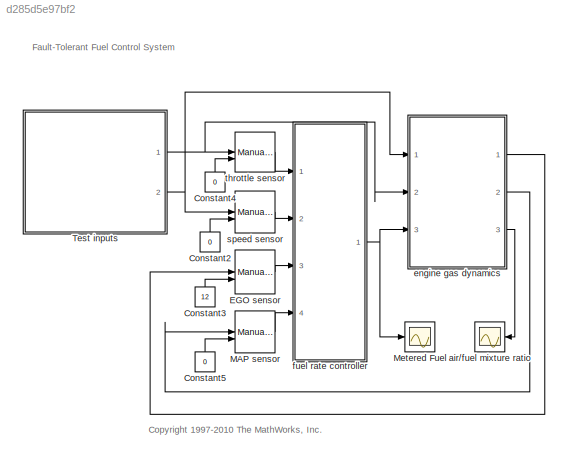
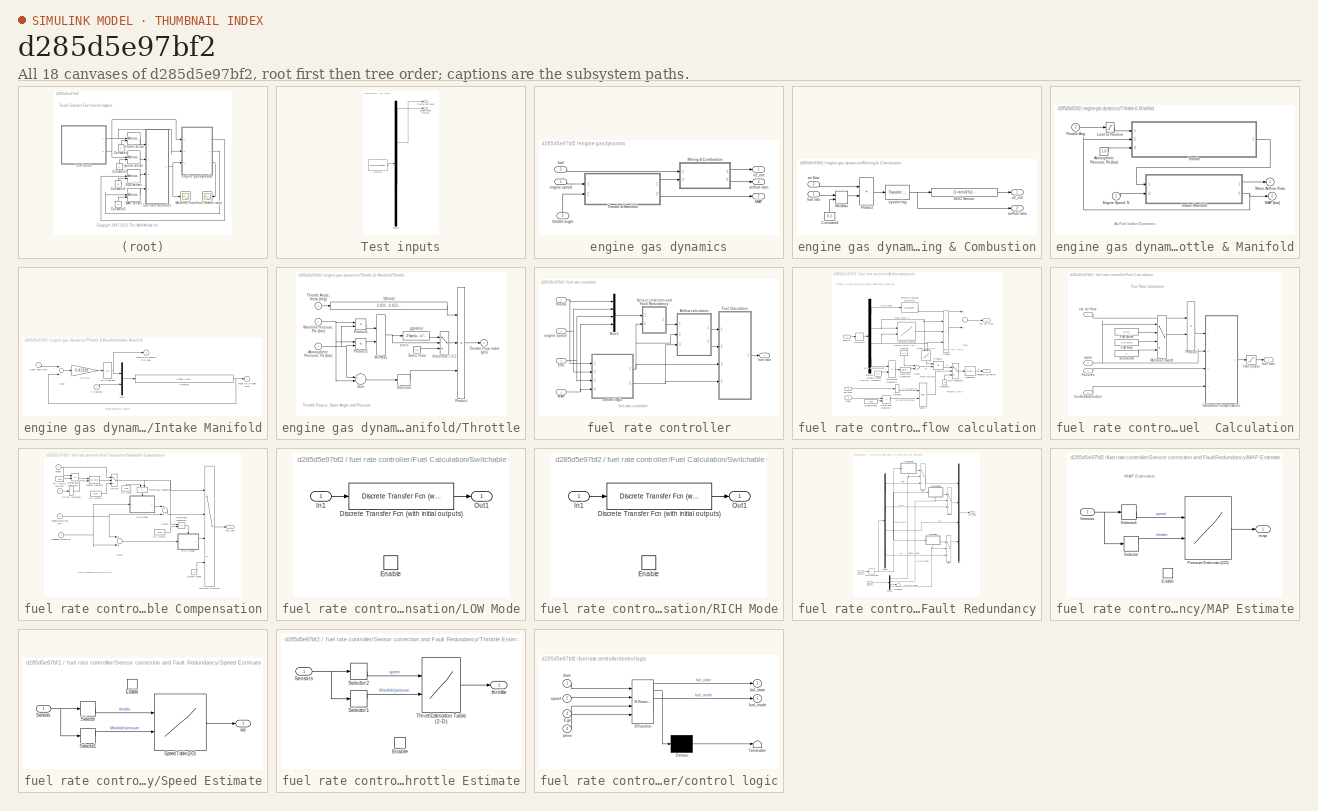
[diagram: thumbnail index - all 18 canvases of the model, root first then tree order]
MODEL slx_d285d5e97bf2
KIND model
CONFIG AbsTol = 1e-6
CONFIG EnableMultiTasking = off
CONFIG FixedStep = 0.001
CONFIG MaxStep = auto
CONFIG MinStep = auto
CONFIG PreLoadFcn = load FuelSysData;
CONFIG RelTol = 1e-5
CONFIG SampleTimeConstraint = Unconstrained
CONFIG Solver = ode45
CONFIG SolverName = ode45
CONFIG StartTime = 0.0
CONFIG StopTime = 20
WORKSPACE source: MAT-file member
WORKSPACE A1 = [1 -0.740818220682]
BLOCK [Constant] Constant2
  Value = 0
BLOCK [Constant] Constant3
  Value = 12
BLOCK [Constant] Constant4
  Value = 0
BLOCK [Constant] Constant5
  Value = 0
BLOCK [ManualSwitch] EGO sensor
BLOCK [ManualSwitch] MAP sensor
BLOCK [Scope] Metered Fuel
  NumInputPorts = 1
  Ports = [1]
  ScopeSpecificationString = C++SS(StrPVP('Location','[25, 518, 300, 694]'),StrPVP('Open','off'),StrPVP('TickLabels','on'),MxPVP('AxesTitles',53,'struct(''axes1'',''%<SignalLabel>'')'),MxPVP('ScopeGraphics',56,'struct(''FigureColor'',''[0.5 0.5 0.5]'',''AxesColor'',''[0 0 0]'',''AxesTickColor'',''[1 1 1]'',''LineColors'',''[1 1 0;1 0 1;0 1 1;1 0 0;0 1 0;0 0 1]'',''LineStyles'',''-|-|-|-|-|-'',''LineWidths'',''[0.5 0.5 0.5 0.5...<+259ch>
BLOCK [SubSystem] Test inputs
  ClipboardFcn = sigbuilder_block('clipboard');
  CloseFcn = sigbuilder_block('close');
  ContinueFcn = sigbuilder_block('continue')
  CopyFcn = sigbuilder_block('copy');
  DeleteFcn = sigbuilder_block('delete');
  LoadFcn = sigbuilder_block('load');
  MaskHideContents = on
  ModelCloseFcn = sigbuilder_block('modelClose');
  NameChangeFcn = sigbuilder_block('namechange');
  OpenFcn = sigbuilder_block('open',[764.25 127.5 550.5 399.75 ]);
  PauseFcn = sigbuilder_block('pause')
  Ports = [0, 2]
  PreSaveFcn = sigbuilder_block('preSave');
  RequestExecContextInheritance = off
  StartFcn = sigbuilder_block('start');
  StopFcn = sigbuilder_block('stop');
  Tag = STV Subsys
  Variant = off
BLOCK [Demux] Test inputs/Demux
  Outputs = 2
  Ports = [1, 2]
  Tag = STV Demux
BLOCK [Outport] Test inputs/Engine speed (rad//sec)
  IconDisplay = Port number
  Port = 2
  Tag = STV Outport
BLOCK [FromWorkspace] Test inputs/FromWs
  SampleTime = 0
  Tag = STV FromWs
  VariableName = tuvar
  ZeroCross = on
BLOCK [Outport] Test inputs/Throttle command
  IconDisplay = Port number
  Tag = STV Outport
BLOCK [Scope] air//fuel mixture ratio
  NumInputPorts = 1
  Ports = [1]
  ScopeSpecificationString = C++SS(StrPVP('Location','[308, 519, 587, 696]'),StrPVP('Open','off'),StrPVP('TickLabels','on'),MxPVP('AxesTitles',53,'struct(''axes1'',''%<SignalLabel>'')'),MxPVP('ScopeGraphics',56,'struct(''FigureColor'',''[0.5 0.5 0.5]'',''AxesColor'',''[0 0 0]'',''AxesTickColor'',''[1 1 1]'',''LineColors'',''[1 1 0;1 0 1;0 1 1;1 0 0;0 1 0;0 0 1]'',''LineStyles'',''-|-|-|-|-|-'',''LineWidths'',''[0.5 0.5 0.5 0....<+256ch>
BLOCK [SubSystem] engine gas dynamics
  Ports = [3, 3]
  RequestExecContextInheritance = off
  Variant = off
BLOCK [Outport] engine gas dynamics/MAP
  IconDisplay = Port number
  InitialOutput = 0
  Port = 2
BLOCK [SubSystem] engine gas dynamics/Mixing & Combustion
  Ports = [2, 2]
  RequestExecContextInheritance = off
  Variant = off
BLOCK [Constant] engine gas dynamics/Mixing & Combustion/Constant4
  Value = 0.1
BLOCK [Fcn] engine gas dynamics/Mixing & Combustion/EGO Sensor
  Expr = (1-tanh(4*(u[1]-14.6)))/2
BLOCK [MinMax] engine gas dynamics/Mixing & Combustion/MinMax
  Function = max
  Inputs = 2
  Ports = [2, 1]
BLOCK [Product] engine gas dynamics/Mixing & Combustion/Product
  Inputs = */
  Ports = [2, 1]
BLOCK [Inport] engine gas dynamics/Mixing & Combustion/air flow
  IconDisplay = Port number
  Port = 2
BLOCK [Outport] engine gas dynamics/Mixing & Combustion/air//fuel ratio
  IconDisplay = Port number
  InitialOutput = 0
  Port = 2
BLOCK [Inport] engine gas dynamics/Mixing & Combustion/fuel rate
  IconDisplay = Port number
BLOCK [Outport] engine gas dynamics/Mixing & Combustion/o2_out
  IconDisplay = Port number
  InitialOutput = 0
BLOCK [Reference] engine gas dynamics/Mixing & Combustion/system lag  REF=simulink_extras/Additional
Linear/Transfer Fcn
(with initial outputs)
  Ports = [1, 1]
  SourceBlock = simulink_extras/Additional\nLinear/Transfer Fcn\n(with initial outputs)
  SourceProductBaseCode = SL
  SourceProductName = Simulink
  SourceType = Transfer Function with Initial Outputs
BLOCK [SubSystem] engine gas dynamics/Throttle & Manifold
  Ports = [2, 2]
  RequestExecContextInheritance = off
  Variant = off
BLOCK [Constant] engine gas dynamics/Throttle & Manifold/Atmospheric Pressure, Pa (bar)
  Value = 1.0
BLOCK [Inport] engine gas dynamics/Throttle & Manifold/Engine Speed, N
  IconDisplay = Port number
BLOCK [SubSystem] engine gas dynamics/Throttle & Manifold/Intake Manifold
  Ports = [2, 2]
  RequestExecContextInheritance = off
  Variant = off
BLOCK [Outport] engine gas dynamics/Throttle & Manifold/Intake Manifold/Manifold Pressure, Pm (bar)
  IconDisplay = Port number
  InitialOutput = 0
  Port = 2
BLOCK [Mux] engine gas dynamics/Throttle & Manifold/Intake Manifold/Mux
  Inputs = 2
  Ports = [2, 1]
BLOCK [Inport] engine gas dynamics/Throttle & Manifold/Intake Manifold/N (rad//sec)
  IconDisplay = Port number
  Port = 2
BLOCK [Fcn] engine gas dynamics/Throttle & Manifold/Intake Manifold/Pumping
  Expr = -0.366 + 0.08979*u[1]*u[2] - 0.0337*u[2]*u[1]*u[1] + 0.0001*u[1]*u[2]*u[2]
BLOCK [Gain] engine gas dynamics/Throttle & Manifold/Intake Manifold/RT//Vm
  Gain = 0.41328
BLOCK [Sum] engine gas dynamics/Throttle & Manifold/Intake Manifold/Sum
  Inputs = +-
  Ports = [2, 1]
BLOCK [Inport] engine gas dynamics/Throttle & Manifold/Intake Manifold/mdot Input (g//s)
  IconDisplay = Port number
BLOCK [Outport] engine gas dynamics/Throttle & Manifold/Intake Manifold/mdot to Cylinder (g//s)
  IconDisplay = Port number
  InitialOutput = 0
BLOCK [Integrator] engine gas dynamics/Throttle & Manifold/Intake Manifold/p0 = 0.589 bar
  InitialCondition = .589
  Ports = [1, 1]
BLOCK [Saturate] engine gas dynamics/Throttle & Manifold/Limit to Positive
  InputPortMap = u0
  LowerLimit = 0
  Ports = [1, 1]
  UpperLimit = inf
BLOCK [Outport] engine gas dynamics/Throttle & Manifold/MAP (bar)
  IconDisplay = Port number
  InitialOutput = 0
  Port = 2
BLOCK [Outport] engine gas dynamics/Throttle & Manifold/Mass Airflow Rate
  IconDisplay = Port number
  InitialOutput = 0
BLOCK [SubSystem] engine gas dynamics/Throttle & Manifold/Throttle
  Ports = [3, 1]
  RequestExecContextInheritance = off
  Variant = off
BLOCK [Inport] engine gas dynamics/Throttle & Manifold/Throttle Ang.
  IconDisplay = Port number
  Port = 2
BLOCK [Inport] engine gas dynamics/Throttle & Manifold/Throttle/Atmospheric Pressure, Pa (bar) 
  IconDisplay = Port number
  Port = 3
BLOCK [Inport] engine gas dynamics/Throttle & Manifold/Throttle/Manifold Pressure, Pm (bar)
  IconDisplay = Port number
  Port = 2
BLOCK [MinMax] engine gas dynamics/Throttle & Manifold/Throttle/MinMax
  Inputs = 2
  Ports = [2, 1]
BLOCK [Product] engine gas dynamics/Throttle & Manifold/Throttle/Product
  Inputs = 3
  Ports = [3, 1]
BLOCK [Product] engine gas dynamics/Throttle & Manifold/Throttle/Product1
  Inputs = */
  Ports = [2, 1]
BLOCK [Product] engine gas dynamics/Throttle & Manifold/Throttle/Product2
  Inputs = /*
  Ports = [2, 1]
BLOCK [Constant] engine gas dynamics/Throttle & Manifold/Throttle/Sonic Flow 
  Value = 1.0
BLOCK [Sum] engine gas dynamics/Throttle & Manifold/Throttle/Sum
  Inputs = +-
  Ports = [2, 1]
BLOCK [Inport] engine gas dynamics/Throttle & Manifold/Throttle/Throttle Angle, theta (deg)
  IconDisplay = Port number
BLOCK [Outport] engine gas dynamics/Throttle & Manifold/Throttle/Throttle Flow, mdot (g//s)
  IconDisplay = Port number
  InitialOutput = 0
BLOCK [Signum] engine gas dynamics/Throttle & Manifold/Throttle/direction
BLOCK [Fcn] engine gas dynamics/Throttle & Manifold/Throttle/f(theta)
  Expr = 2.821 - 0.05231*u[1] + 0.10299*u[1]*u[1] - 0.00063*u[1]*u[1]*u[1]
BLOCK [Fcn] engine gas dynamics/Throttle & Manifold/Throttle/g(pratio)
  Expr = 2*sqrt(u - u*u)
BLOCK [Switch] engine gas dynamics/Throttle & Manifold/Throttle/threshold = 0.5
  Threshold = 0.5
BLOCK [Outport] engine gas dynamics/air//fuel ratio
  IconDisplay = Port number
  InitialOutput = 0
  Port = 3
BLOCK [Inport] engine gas dynamics/engine speed
  IconDisplay = Port number
BLOCK [Inport] engine gas dynamics/fuel
  IconDisplay = Port number
  Port = 3
BLOCK [Outport] engine gas dynamics/o2_out
  IconDisplay = Port number
  InitialOutput = 0
BLOCK [Inport] engine gas dynamics/throttle angle
  IconDisplay = Port number
  Port = 2
BLOCK [SubSystem] fuel rate controller
  Ports = [4, 1]
  RequestExecContextInheritance = off
  Variant = off
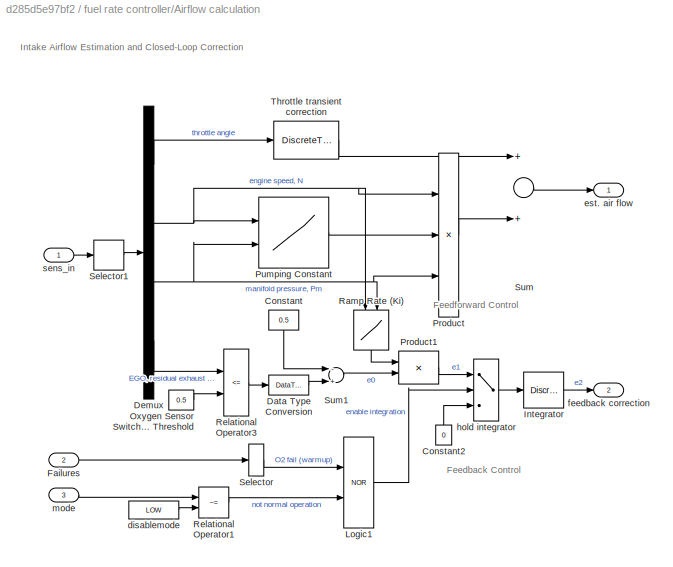
BLOCK [SubSystem] fuel rate controller/Airflow calculation
  Ports = [3, 2]
  RequestExecContextInheritance = off
  Variant = off
BLOCK [Constant] fuel rate controller/Airflow calculation/Constant
  Value = 0.5
BLOCK [Constant] fuel rate controller/Airflow calculation/Constant2
  Value = 0
BLOCK [DataTypeConversion] fuel rate controller/Airflow calculation/Data Type Conversion
  OutDataTypeStr = double
BLOCK [Demux] fuel rate controller/Airflow calculation/Demux
  Ports = [1, 4]
BLOCK [Inport] fuel rate controller/Airflow calculation/Failures
  IconDisplay = Port number
  Port = 2
BLOCK [DiscreteIntegrator] fuel rate controller/Airflow calculation/Integrator
  ICPrevOutput = DiscIntNeverNeededParam
  ICPrevScaledInput = DiscIntNeverNeededParam
  InitialCondition = -0.01
  Ports = [1, 1]
  SampleTime = .01
BLOCK [Logic] fuel rate controller/Airflow calculation/Logic1
  Operator = NOR
  Ports = [2, 1]
BLOCK [Constant] fuel rate controller/Airflow calculation/Oxygen Sensor Switching Threshold
  Value = 0.5
BLOCK [Product] fuel rate controller/Airflow calculation/Product
  Inputs = 3
  Ports = [3, 1]
BLOCK [Product] fuel rate controller/Airflow calculation/Product1
  Ports = [2, 1]
BLOCK [Lookup2D] fuel rate controller/Airflow calculation/Pumping Constant
  ColumnIndex = press
  RowIndex = SpeedVect
  Table = pumpCon
BLOCK [Lookup2D] fuel rate controller/Airflow calculation/Ramp Rate (Ki)
  ColumnIndex = [0:0.2:1]
  RowIndex = [100:100:500]
  Table = [1:5]'*[1:6]*Ki
BLOCK [RelationalOperator] fuel rate controller/Airflow calculation/Relational Operator1
  Operator = ~=
  Ports = [2, 1]
BLOCK [RelationalOperator] fuel rate controller/Airflow calculation/Relational Operator3
  Operator = <=
  Ports = [2, 1]
BLOCK [Selector] fuel rate controller/Airflow calculation/Selector
  IndexOptions = Index vector (dialog)
  Indices = 3
  InputPortWidth = 4
  OutputSizes = 1
  Ports = [1, 1]
BLOCK [Selector] fuel rate controller/Airflow calculation/Selector1
  IndexOptions = Index vector (dialog)
  Indices = [1 2 4 3]
  InputPortWidth = 4
  OutputSizes = 1
  Ports = [1, 1]
BLOCK [Sum] fuel rate controller/Airflow calculation/Sum
  Inputs = 2
  Ports = [2, 1]
BLOCK [Sum] fuel rate controller/Airflow calculation/Sum1
  Inputs = -+
  Ports = [2, 1]
BLOCK [DiscreteTransferFcn] fuel rate controller/Airflow calculation/Throttle transient correction
  Denominator = [1 -0.8]
  InputPortMap = u0
  Numerator = [0.01 -0.01]
  Ports = [1, 1]
  SampleTime = .01
BLOCK [Constant] fuel rate controller/Airflow calculation/disablemode
  Value = LOW
BLOCK [Outport] fuel rate controller/Airflow calculation/est. air flow
  IconDisplay = Port number
  InitialOutput = 0
BLOCK [Outport] fuel rate controller/Airflow calculation/feedback correction
  IconDisplay = Port number
  InitialOutput = 0
  Port = 2
BLOCK [Switch] fuel rate controller/Airflow calculation/hold integrator
  Threshold = 1
BLOCK [Inport] fuel rate controller/Airflow calculation/mode
  IconDisplay = Port number
  Port = 3
BLOCK [Inport] fuel rate controller/Airflow calculation/sens_in
  IconDisplay = Port number
BLOCK [Inport] fuel rate controller/EGO
  IconDisplay = Port number
  Port = 3
BLOCK [SubSystem] fuel rate controller/Fuel  Calculation
  Ports = [4, 1]
  RequestExecContextInheritance = off
  Variant = off
BLOCK [Constant] fuel rate controller/Fuel  Calculation/F//A Norm
  Value = 1/14.6
BLOCK [Constant] fuel rate controller/Fuel  Calculation/F//A Rich
  Value = 1/(14.6*0.8)
BLOCK [Inport] fuel rate controller/Fuel  Calculation/Failures
  IconDisplay = Port number
  Port = 3
BLOCK [MultiPortSwitch] fuel rate controller/Fuel  Calculation/Multiport Switch
  Ports = [4, 1]
BLOCK [Product] fuel rate controller/Fuel  Calculation/Product
  Ports = [2, 1]
BLOCK [Constant] fuel rate controller/Fuel  Calculation/Shutdown
  Value = 0
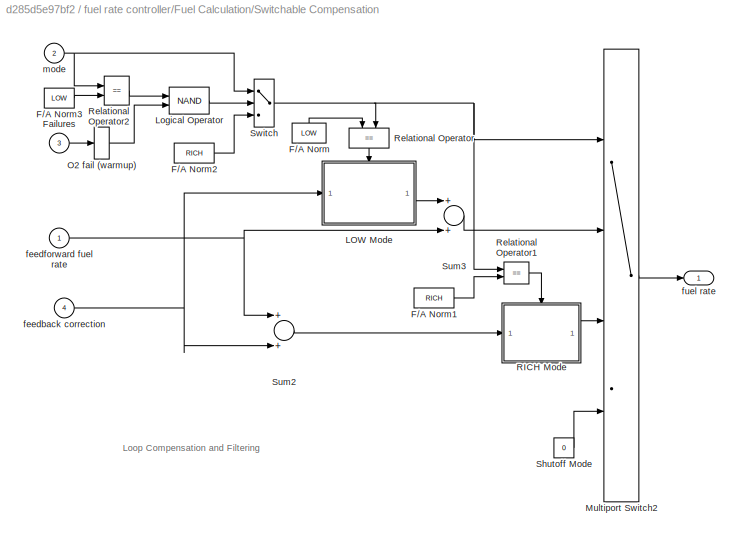
BLOCK [SubSystem] fuel rate controller/Fuel  Calculation/Switchable Compensation
  Ports = [4, 1]
  RequestExecContextInheritance = off
  Variant = off
BLOCK [Constant] fuel rate controller/Fuel  Calculation/Switchable Compensation/F//A Norm
  Value = LOW
BLOCK [Constant] fuel rate controller/Fuel  Calculation/Switchable Compensation/F//A Norm1
  Value = RICH
BLOCK [Constant] fuel rate controller/Fuel  Calculation/Switchable Compensation/F//A Norm2
  Value = RICH
BLOCK [Constant] fuel rate controller/Fuel  Calculation/Switchable Compensation/F//A Norm3
  Value = LOW
BLOCK [Inport] fuel rate controller/Fuel  Calculation/Switchable Compensation/Failures
  IconDisplay = Port number
  Port = 3
BLOCK [SubSystem] fuel rate controller/Fuel  Calculation/Switchable Compensation/LOW Mode
  Ports = [1, 1, 1]
  RequestExecContextInheritance = off
  Variant = off
BLOCK [Reference] fuel rate controller/Fuel  Calculation/Switchable Compensation/LOW Mode/Discrete Transfer Fcn (with initial outputs)  REF=simulink_extras/Additional
Discrete/Discrete
Transfer Fcn
(with initial outputs)
  Ports = [1, 1]
  SourceBlock = simulink_extras/Additional\nDiscrete/Discrete\nTransfer Fcn\n(with initial outputs)
  SourceProductBaseCode = SL
  SourceProductName = Simulink
  SourceType = Discrete Transfer Function with Initial Outputs
BLOCK [EnablePort] fuel rate controller/Fuel  Calculation/Switchable Compensation/LOW Mode/Enable
  Ports = []
  PropagateVarSize = During execution
  StatesWhenEnabling = reset
BLOCK [Inport] fuel rate controller/Fuel  Calculation/Switchable Compensation/LOW Mode/In1
  IconDisplay = Port number
BLOCK [Outport] fuel rate controller/Fuel  Calculation/Switchable Compensation/LOW Mode/Out1
  IconDisplay = Port number
  InitialOutput = y0
BLOCK [Logic] fuel rate controller/Fuel  Calculation/Switchable Compensation/Logical Operator
  Operator = NAND
  Ports = [2, 1]
BLOCK [MultiPortSwitch] fuel rate controller/Fuel  Calculation/Switchable Compensation/Multiport Switch2
  Ports = [4, 1]
BLOCK [Selector] fuel rate controller/Fuel  Calculation/Switchable Compensation/O2 fail (warmup)
  IndexOptions = Index vector (dialog)
  Indices = 3
  InputPortWidth = 4
  OutputSizes = 1
  Ports = [1, 1]
BLOCK [SubSystem] fuel rate controller/Fuel  Calculation/Switchable Compensation/RICH Mode
  Ports = [1, 1, 1]
  RequestExecContextInheritance = off
  Variant = off
BLOCK [Reference] fuel rate controller/Fuel  Calculation/Switchable Compensation/RICH Mode/Discrete Transfer Fcn (with initial outputs)  REF=simulink_extras/Additional
Discrete/Discrete
Transfer Fcn
(with initial outputs)
  Ports = [1, 1]
  SourceBlock = simulink_extras/Additional\nDiscrete/Discrete\nTransfer Fcn\n(with initial outputs)
  SourceProductBaseCode = SL
  SourceProductName = Simulink
  SourceType = Discrete Transfer Function with Initial Outputs
BLOCK [EnablePort] fuel rate controller/Fuel  Calculation/Switchable Compensation/RICH Mode/Enable
  Ports = []
  PropagateVarSize = During execution
  StatesWhenEnabling = reset
BLOCK [Inport] fuel rate controller/Fuel  Calculation/Switchable Compensation/RICH Mode/In1
  IconDisplay = Port number
BLOCK [Outport] fuel rate controller/Fuel  Calculation/Switchable Compensation/RICH Mode/Out1
  IconDisplay = Port number
  InitialOutput = y0
BLOCK [RelationalOperator] fuel rate controller/Fuel  Calculation/Switchable Compensation/Relational Operator
  Operator = ==
  Ports = [2, 1]
BLOCK [RelationalOperator] fuel rate controller/Fuel  Calculation/Switchable Compensation/Relational Operator1
  Operator = ==
  Ports = [2, 1]
BLOCK [RelationalOperator] fuel rate controller/Fuel  Calculation/Switchable Compensation/Relational Operator2
  Operator = ==
  Ports = [2, 1]
BLOCK [Constant] fuel rate controller/Fuel  Calculation/Switchable Compensation/Shutoff Mode
  Value = 0
BLOCK [Sum] fuel rate controller/Fuel  Calculation/Switchable Compensation/Sum2
  Ports = [2, 1]
BLOCK [Sum] fuel rate controller/Fuel  Calculation/Switchable Compensation/Sum3
  Ports = [2, 1]
BLOCK [Switch] fuel rate controller/Fuel  Calculation/Switchable Compensation/Switch
  Threshold = 1
BLOCK [Inport] fuel rate controller/Fuel  Calculation/Switchable Compensation/feedback correction
  IconDisplay = Port number
  Port = 4
BLOCK [Inport] fuel rate controller/Fuel  Calculation/Switchable Compensation/feedforward fuel rate
  IconDisplay = Port number
BLOCK [Outport] fuel rate controller/Fuel  Calculation/Switchable Compensation/fuel rate
  IconDisplay = Port number
  InitialOutput = 0
BLOCK [Inport] fuel rate controller/Fuel  Calculation/Switchable Compensation/mode
  IconDisplay = Port number
  Port = 2
BLOCK [Inport] fuel rate controller/Fuel  Calculation/est. air flow
  IconDisplay = Port number
BLOCK [Inport] fuel rate controller/Fuel  Calculation/feedback correction
  IconDisplay = Port number
  Port = 2
BLOCK [Outport] fuel rate controller/Fuel  Calculation/fuel rate
  IconDisplay = Port number
  InitialOutput = 0
BLOCK [Saturate] fuel rate controller/Fuel  Calculation/limit output
  InputPortMap = u0
  LowerLimit = 0
  Ports = [1, 1]
  UpperLimit = 100
BLOCK [Inport] fuel rate controller/Fuel  Calculation/mode
  IconDisplay = Port number
  Port = 4
BLOCK [Inport] fuel rate controller/MAP
  IconDisplay = Port number
  Port = 4
BLOCK [Mux] fuel rate controller/Mux1
  Ports = [4, 1]
BLOCK [SubSystem] fuel rate controller/Sensor correction and Fault Redundancy
  Ports = [2, 1]
  RequestExecContextInheritance = off
  Variant = off
BLOCK [Outport] fuel rate controller/Sensor correction and Fault Redundancy/Corrected
  IconDisplay = Port number
  InitialOutput = 0
BLOCK [Demux] fuel rate controller/Sensor correction and Fault Redundancy/Demux
  Ports = [1, 4]
BLOCK [Demux] fuel rate controller/Sensor correction and Fault Redundancy/Demux1
  Ports = [1, 4]
BLOCK [Inport] fuel rate controller/Sensor correction and Fault Redundancy/Failures
  IconDisplay = Port number
  Port = 2
BLOCK [SubSystem] fuel rate controller/Sensor correction and Fault Redundancy/MAP Estimate
  Ports = [1, 1, 1]
  RequestExecContextInheritance = off
  Variant = off
BLOCK [EnablePort] fuel rate controller/Sensor correction and Fault Redundancy/MAP Estimate/Enable
  Ports = []
  PropagateVarSize = During execution
BLOCK [Lookup2D] fuel rate controller/Sensor correction and Fault Redundancy/MAP Estimate/Pressure Estimate (2-D)
  ColumnIndex = ThrotVect
  RowIndex = SpeedVect
  Table = PressEst
BLOCK [Selector] fuel rate controller/Sensor correction and Fault Redundancy/MAP Estimate/Selector
  IndexOptions = Index vector (dialog)
  Indices = 1
  InputPortWidth = 4
  OutputSizes = 1
  Ports = [1, 1]
BLOCK [Selector] fuel rate controller/Sensor correction and Fault Redundancy/MAP Estimate/Selector1
  IndexOptions = Index vector (dialog)
  Indices = 2
  InputPortWidth = 4
  OutputSizes = 1
  Ports = [1, 1]
BLOCK [Inport] fuel rate controller/Sensor correction and Fault Redundancy/MAP Estimate/Sensors
  IconDisplay = Port number
BLOCK [Outport] fuel rate controller/Sensor correction and Fault Redundancy/MAP Estimate/map
  IconDisplay = Port number
  InitialOutput = 0
BLOCK [Mux] fuel rate controller/Sensor correction and Fault Redundancy/Mux
  Ports = [4, 1]
BLOCK [Inport] fuel rate controller/Sensor correction and Fault Redundancy/Sensors
  IconDisplay = Port number
BLOCK [SubSystem] fuel rate controller/Sensor correction and Fault Redundancy/Speed Estimate
  Ports = [1, 1, 1]
  RequestExecContextInheritance = off
  Variant = off
BLOCK [EnablePort] fuel rate controller/Sensor correction and Fault Redundancy/Speed Estimate/Enable
  Ports = []
  PropagateVarSize = During execution
BLOCK [Selector] fuel rate controller/Sensor correction and Fault Redundancy/Speed Estimate/Selector
  IndexOptions = Index vector (dialog)
  Indices = 1
  InputPortWidth = 4
  OutputSizes = 1
  Ports = [1, 1]
BLOCK [Selector] fuel rate controller/Sensor correction and Fault Redundancy/Speed Estimate/Selector1
  IndexOptions = Index vector (dialog)
  Indices = 4
  InputPortWidth = 4
  OutputSizes = 1
  Ports = [1, 1]
BLOCK [Inport] fuel rate controller/Sensor correction and Fault Redundancy/Speed Estimate/Sensors
  IconDisplay = Port number
BLOCK [Lookup2D] fuel rate controller/Sensor correction and Fault Redundancy/Speed Estimate/Speed Table (2-D)
  ColumnIndex = press
  RowIndex = ThrotVect
  Table = SpeedEst
BLOCK [Outport] fuel rate controller/Sensor correction and Fault Redundancy/Speed Estimate/we
  IconDisplay = Port number
  InitialOutput = 0
BLOCK [Switch] fuel rate controller/Sensor correction and Fault Redundancy/Switch
  Threshold = 1
BLOCK [Switch] fuel rate controller/Sensor correction and Fault Redundancy/Switch3
  Threshold = 1
BLOCK [Switch] fuel rate controller/Sensor correction and Fault Redundancy/Switch4
  Threshold = 1
BLOCK [Terminator] fuel rate controller/Sensor correction and Fault Redundancy/Terminator1
BLOCK [SubSystem] fuel rate controller/Sensor correction and Fault Redundancy/Throttle Estimate
  Ports = [1, 1, 1]
  RequestExecContextInheritance = off
  Variant = off
BLOCK [EnablePort] fuel rate controller/Sensor correction and Fault Redundancy/Throttle Estimate/Enable
  Ports = []
  PropagateVarSize = During execution
BLOCK [Selector] fuel rate controller/Sensor correction and Fault Redundancy/Throttle Estimate/Selector1
  IndexOptions = Index vector (dialog)
  Indices = 4
  InputPortWidth = 4
  OutputSizes = 1
  Ports = [1, 1]
BLOCK [Selector] fuel rate controller/Sensor correction and Fault Redundancy/Throttle Estimate/Selector2
  IndexOptions = Index vector (dialog)
  Indices = 2
  InputPortWidth = 4
  OutputSizes = 1
  Ports = [1, 1]
BLOCK [Inport] fuel rate controller/Sensor correction and Fault Redundancy/Throttle Estimate/Sensors
  IconDisplay = Port number
BLOCK [Lookup2D] fuel rate controller/Sensor correction and Fault Redundancy/Throttle Estimate/Thrott Estimation Table (2-D)
  ColumnIndex = press
  RowIndex = SpeedVect
  Table = ThrotEst
BLOCK [Outport] fuel rate controller/Sensor correction and Fault Redundancy/Throttle Estimate/throttle
  IconDisplay = Port number
  InitialOutput = 0
BLOCK [ZeroOrderHold] fuel rate controller/Sensor correction and Fault Redundancy/Zero-Order Hold
  SampleTime = 0.01
BLOCK [SubSystem] fuel rate controller/control logic
  Description = Stateflow diagram to determine control system operating mode
  ErrorFcn = Stateflow.Translate.translate
  PermitHierarchicalResolution = ExplicitOnly
  Ports = [4, 2]
  RequestExecContextInheritance = off
  SFBlockType = Chart
  TreatAsAtomicUnit = on
  Variant = off
BLOCK [Demux] fuel rate controller/control logic/ Demux 
  Outputs = 1
  Ports = [1, 1]
BLOCK [S-Function] fuel rate controller/control logic/ SFunction 
  EnableBusSupport = off
  FunctionName = sf_sfun
  Parameters = DISABLED,LOW,RICH,hys,max_ego,max_press,max_speed,max_throt,min_press,min_throt,o2_t_thresh,zero_thresh
  PortCounts = [4 3]
  Ports = [4, 3]
  SFcnIsStateOwnerBlock = off
  SFunctionDeploymentMode = off
  Tag = Stateflow S-Function FuelSysWithReqLinks 1
BLOCK [Terminator] fuel rate controller/control logic/ Terminator 
BLOCK [Inport] fuel rate controller/control logic/Ego
  IconDisplay = Port number
  Port = 3
BLOCK [Outport] fuel rate controller/control logic/fail_state
  IconDisplay = Port number
BLOCK [Outport] fuel rate controller/control logic/fuel_mode
  IconDisplay = Port number
  Port = 2
BLOCK [Inport] fuel rate controller/control logic/press
  IconDisplay = Port number
  Port = 4
BLOCK [Inport] fuel rate controller/control logic/speed
  IconDisplay = Port number
  Port = 2
BLOCK [Inport] fuel rate controller/control logic/throt
  IconDisplay = Port number
BLOCK [Inport] fuel rate controller/engine speed
  IconDisplay = Port number
  Port = 2
BLOCK [Outport] fuel rate controller/fuel rate
  IconDisplay = Port number
  InitialOutput = 0
BLOCK [Inport] fuel rate controller/throttle
  IconDisplay = Port number
BLOCK [ManualSwitch] speed sensor
BLOCK [ManualSwitch] throttle sensor
ANNOTATION (root): <copyright redacted>
ANNOTATION (root): Fault-Tolerant Fuel Control System
ANNOTATION engine gas dynamics/Throttle & Manifold: Air-Fuel Intake Dynamics
ANNOTATION engine gas dynamics/Throttle & Manifold/Intake Manifold: Intake Manifold Vacuum
ANNOTATION engine gas dynamics/Throttle & Manifold/Throttle: Throttle Flow vs. Valve Angle and Pressure
ANNOTATION fuel rate controller: fuel rate controller
ANNOTATION fuel rate controller/Airflow calculation: Feedback Control
ANNOTATION fuel rate controller/Airflow calculation: Feedforward Control
ANNOTATION fuel rate controller/Airflow calculation: Intake Airflow Estimation and Closed-Loop Correction
ANNOTATION fuel rate controller/Fuel  Calculation: Fuel Rate Calculation
ANNOTATION fuel rate controller/Fuel  Calculation/Switchable Compensation: Loop Compensation and Filtering
ANNOTATION fuel rate controller/Sensor correction and Fault Redundancy/MAP Estimate: MAP Estimation
LINE Constant2:1 -> speed sensor:2
LINE Constant3:1 -> EGO sensor:2
LINE Constant4:1 -> throttle sensor:2
LINE Constant5:1 -> MAP sensor:2
LINE EGO sensor:1 -> fuel rate controller:3
LINE MAP sensor:1 -> fuel rate controller:4
NET Test inputs:1 -> engine gas dynamics:2, throttle sensor:1
NET Test inputs:2 -> engine gas dynamics:1, speed sensor:1
LINE engine gas dynamics/Mixing & Combustion/Constant4:1 -> engine gas dynamics/Mixing & Combustion/MinMax:2
LINE engine gas dynamics/Mixing & Combustion/EGO Sensor:1 -> engine gas dynamics/Mixing & Combustion/o2_out:1
LINE engine gas dynamics/Mixing & Combustion/MinMax:1 -> engine gas dynamics/Mixing & Combustion/Product:2
LINE engine gas dynamics/Mixing & Combustion/Product:1 -> engine gas dynamics/Mixing & Combustion/system lag:1
LINE engine gas dynamics/Mixing & Combustion/air flow:1 -> engine gas dynamics/Mixing & Combustion/Product:1
LINE engine gas dynamics/Mixing & Combustion/fuel rate:1 -> engine gas dynamics/Mixing & Combustion/MinMax:1
NET engine gas dynamics/Mixing & Combustion/system lag:1 -> engine gas dynamics/Mixing & Combustion/EGO Sensor:1, engine gas dynamics/Mixing & Combustion/air//fuel ratio:1
LINE engine gas dynamics/Mixing & Combustion:1 -> engine gas dynamics/o2_out:1
LINE engine gas dynamics/Mixing & Combustion:2 -> engine gas dynamics/air//fuel ratio:1
LINE engine gas dynamics/Throttle & Manifold/Atmospheric Pressure, Pa (bar):1 -> engine gas dynamics/Throttle & Manifold/Throttle:3
LINE engine gas dynamics/Throttle & Manifold/Engine Speed, N:1 -> engine gas dynamics/Throttle & Manifold/Intake Manifold:2
LINE engine gas dynamics/Throttle & Manifold/Intake Manifold/Mux:1 -> engine gas dynamics/Throttle & Manifold/Intake Manifold/Pumping:1
LINE engine gas dynamics/Throttle & Manifold/Intake Manifold/N (rad//sec):1 -> engine gas dynamics/Throttle & Manifold/Intake Manifold/Mux:2
NET engine gas dynamics/Throttle & Manifold/Intake Manifold/Pumping:1 -> engine gas dynamics/Throttle & Manifold/Intake Manifold/Sum:2, engine gas dynamics/Throttle & Manifold/Intake Manifold/mdot to Cylinder (g//s):1
LINE engine gas dynamics/Throttle & Manifold/Intake Manifold/RT//Vm:1 -> engine gas dynamics/Throttle & Manifold/Intake Manifold/p0 = 0.589 bar:1
LINE engine gas dynamics/Throttle & Manifold/Intake Manifold/Sum:1 -> engine gas dynamics/Throttle & Manifold/Intake Manifold/RT//Vm:1
LINE engine gas dynamics/Throttle & Manifold/Intake Manifold/mdot Input (g//s):1 -> engine gas dynamics/Throttle & Manifold/Intake Manifold/Sum:1
NET engine gas dynamics/Throttle & Manifold/Intake Manifold/p0 = 0.589 bar:1 -> engine gas dynamics/Throttle & Manifold/Intake Manifold/Manifold Pressure, Pm (bar):1, engine gas dynamics/Throttle & Manifold/Intake Manifold/Mux:1
LINE engine gas dynamics/Throttle & Manifold/Intake Manifold:1 -> engine gas dynamics/Throttle & Manifold/Mass Airflow Rate:1
NET engine gas dynamics/Throttle & Manifold/Intake Manifold:2 -> engine gas dynamics/Throttle & Manifold/MAP (bar):1, engine gas dynamics/Throttle & Manifold/Throttle:2
LINE engine gas dynamics/Throttle & Manifold/Limit to Positive:1 -> engine gas dynamics/Throttle & Manifold/Throttle:1
LINE engine gas dynamics/Throttle & Manifold/Throttle Ang.:1 -> engine gas dynamics/Throttle & Manifold/Limit to Positive:1
NET engine gas dynamics/Throttle & Manifold/Throttle/Atmospheric Pressure, Pa (bar) :1 -> engine gas dynamics/Throttle & Manifold/Throttle/Product1:2, engine gas dynamics/Throttle & Manifold/Throttle/Product2:2, engine gas dynamics/Throttle & Manifold/Throttle/Sum:1
NET engine gas dynamics/Throttle & Manifold/Throttle/Manifold Pressure, Pm (bar):1 -> engine gas dynamics/Throttle & Manifold/Throttle/Product1:1, engine gas dynamics/Throttle & Manifold/Throttle/Product2:1, engine gas dynamics/Throttle & Manifold/Throttle/Sum:2
NET engine gas dynamics/Throttle & Manifold/Throttle/MinMax:1 -> engine gas dynamics/Throttle & Manifold/Throttle/g(pratio):1, engine gas dynamics/Throttle & Manifold/Throttle/threshold = 0.5:2
LINE engine gas dynamics/Throttle & Manifold/Throttle/Product1:1 -> engine gas dynamics/Throttle & Manifold/Throttle/MinMax:1
LINE engine gas dynamics/Throttle & Manifold/Throttle/Product2:1 -> engine gas dynamics/Throttle & Manifold/Throttle/MinMax:2
LINE engine gas dynamics/Throttle & Manifold/Throttle/Product:1 -> engine gas dynamics/Throttle & Manifold/Throttle/Throttle Flow, mdot (g//s):1
LINE engine gas dynamics/Throttle & Manifold/Throttle/Sonic Flow :1 -> engine gas dynamics/Throttle & Manifold/Throttle/threshold = 0.5:3
LINE engine gas dynamics/Throttle & Manifold/Throttle/Sum:1 -> engine gas dynamics/Throttle & Manifold/Throttle/direction:1
LINE engine gas dynamics/Throttle & Manifold/Throttle/Throttle Angle, theta (deg):1 -> engine gas dynamics/Throttle & Manifold/Throttle/f(theta):1
LINE engine gas dynamics/Throttle & Manifold/Throttle/direction:1 -> engine gas dynamics/Throttle & Manifold/Throttle/Product:3
LINE engine gas dynamics/Throttle & Manifold/Throttle/f(theta):1 -> engine gas dynamics/Throttle & Manifold/Throttle/Product:1
LINE engine gas dynamics/Throttle & Manifold/Throttle/g(pratio):1 -> engine gas dynamics/Throttle & Manifold/Throttle/threshold = 0.5:1
LINE engine gas dynamics/Throttle & Manifold/Throttle/threshold = 0.5:1 -> engine gas dynamics/Throttle & Manifold/Throttle/Product:2
LINE engine gas dynamics/Throttle & Manifold/Throttle:1 -> engine gas dynamics/Throttle & Manifold/Intake Manifold:1
LINE engine gas dynamics/Throttle & Manifold:1 -> engine gas dynamics/Mixing & Combustion:2
LINE engine gas dynamics/Throttle & Manifold:2 -> engine gas dynamics/MAP:1
LINE engine gas dynamics/engine speed:1 -> engine gas dynamics/Throttle & Manifold:1
LINE engine gas dynamics/fuel:1 -> engine gas dynamics/Mixing & Combustion:1
LINE engine gas dynamics/throttle angle:1 -> engine gas dynamics/Throttle & Manifold:2
LINE engine gas dynamics:1 -> EGO sensor:1
LINE engine gas dynamics:2 -> MAP sensor:1
LINE engine gas dynamics:3 -> air//fuel mixture ratio:1
LINE fuel rate controller/Airflow calculation/Constant2:1 -> fuel rate controller/Airflow calculation/hold integrator:3
LINE fuel rate controller/Airflow calculation/Constant:1 -> fuel rate controller/Airflow calculation/Sum1:1
LINE fuel rate controller/Airflow calculation/Data Type Conversion:1 -> fuel rate controller/Airflow calculation/Sum1:2
LINE fuel rate controller/Airflow calculation/Demux:1 -> fuel rate controller/Airflow calculation/Throttle transient correction:1
NET fuel rate controller/Airflow calculation/Demux:2 -> fuel rate controller/Airflow calculation/Product:1, fuel rate controller/Airflow calculation/Pumping Constant:1, fuel rate controller/Airflow calculation/Ramp Rate (Ki):1
NET fuel rate controller/Airflow calculation/Demux:3 -> fuel rate controller/Airflow calculation/Product:3, fuel rate controller/Airflow calculation/Pumping Constant:2, fuel rate controller/Airflow calculation/Ramp Rate (Ki):2
LINE fuel rate controller/Airflow calculation/Demux:4 -> fuel rate controller/Airflow calculation/Relational Operator3:1
LINE fuel rate controller/Airflow calculation/Failures:1 -> fuel rate controller/Airflow calculation/Selector:1
LINE fuel rate controller/Airflow calculation/Integrator:1 -> fuel rate controller/Airflow calculation/feedback correction:1
LINE fuel rate controller/Airflow calculation/Logic1:1 -> fuel rate controller/Airflow calculation/hold integrator:2
LINE fuel rate controller/Airflow calculation/Oxygen Sensor Switching Threshold:1 -> fuel rate controller/Airflow calculation/Relational Operator3:2
LINE fuel rate controller/Airflow calculation/Product1:1 -> fuel rate controller/Airflow calculation/hold integrator:1
LINE fuel rate controller/Airflow calculation/Product:1 -> fuel rate controller/Airflow calculation/Sum:2
LINE fuel rate controller/Airflow calculation/Pumping Constant:1 -> fuel rate controller/Airflow calculation/Product:2
LINE fuel rate controller/Airflow calculation/Ramp Rate (Ki):1 -> fuel rate controller/Airflow calculation/Product1:1
LINE fuel rate controller/Airflow calculation/Relational Operator1:1 -> fuel rate controller/Airflow calculation/Logic1:2
LINE fuel rate controller/Airflow calculation/Relational Operator3:1 -> fuel rate controller/Airflow calculation/Data Type Conversion:1
LINE fuel rate controller/Airflow calculation/Selector1:1 -> fuel rate controller/Airflow calculation/Demux:1
LINE fuel rate controller/Airflow calculation/Selector:1 -> fuel rate controller/Airflow calculation/Logic1:1
LINE fuel rate controller/Airflow calculation/Sum1:1 -> fuel rate controller/Airflow calculation/Product1:2
LINE fuel rate controller/Airflow calculation/Sum:1 -> fuel rate controller/Airflow calculation/est. air flow:1
LINE fuel rate controller/Airflow calculation/Throttle transient correction:1 -> fuel rate controller/Airflow calculation/Sum:1
LINE fuel rate controller/Airflow calculation/disablemode:1 -> fuel rate controller/Airflow calculation/Relational Operator1:2
LINE fuel rate controller/Airflow calculation/hold integrator:1 -> fuel rate controller/Airflow calculation/Integrator:1
LINE fuel rate controller/Airflow calculation/mode:1 -> fuel rate controller/Airflow calculation/Relational Operator1:1
LINE fuel rate controller/Airflow calculation/sens_in:1 -> fuel rate controller/Airflow calculation/Selector1:1
LINE fuel rate controller/Airflow calculation:1 -> fuel rate controller/Fuel  Calculation:1
LINE fuel rate controller/Airflow calculation:2 -> fuel rate controller/Fuel  Calculation:2
NET fuel rate controller/EGO:1 -> fuel rate controller/Mux1:3, fuel rate controller/control logic:3
LINE fuel rate controller/Fuel  Calculation/F//A Norm:1 -> fuel rate controller/Fuel  Calculation/Multiport Switch:2
LINE fuel rate controller/Fuel  Calculation/F//A Rich:1 -> fuel rate controller/Fuel  Calculation/Multiport Switch:3
LINE fuel rate controller/Fuel  Calculation/Failures:1 -> fuel rate controller/Fuel  Calculation/Switchable Compensation:3
LINE fuel rate controller/Fuel  Calculation/Multiport Switch:1 -> fuel rate controller/Fuel  Calculation/Product:2
LINE fuel rate controller/Fuel  Calculation/Product:1 -> fuel rate controller/Fuel  Calculation/Switchable Compensation:1
LINE fuel rate controller/Fuel  Calculation/Shutdown:1 -> fuel rate controller/Fuel  Calculation/Multiport Switch:4
LINE fuel rate controller/Fuel  Calculation/Switchable Compensation/F//A Norm1:1 -> fuel rate controller/Fuel  Calculation/Switchable Compensation/Relational Operator1:2
LINE fuel rate controller/Fuel  Calculation/Switchable Compensation/F//A Norm2:1 -> fuel rate controller/Fuel  Calculation/Switchable Compensation/Switch:3
LINE fuel rate controller/Fuel  Calculation/Switchable Compensation/F//A Norm3:1 -> fuel rate controller/Fuel  Calculation/Switchable Compensation/Relational Operator2:2
LINE fuel rate controller/Fuel  Calculation/Switchable Compensation/F//A Norm:1 -> fuel rate controller/Fuel  Calculation/Switchable Compensation/Relational Operator:1
LINE fuel rate controller/Fuel  Calculation/Switchable Compensation/Failures:1 -> fuel rate controller/Fuel  Calculation/Switchable Compensation/O2 fail (warmup):1
LINE fuel rate controller/Fuel  Calculation/Switchable Compensation/LOW Mode/Discrete Transfer Fcn (with initial outputs):1 -> fuel rate controller/Fuel  Calculation/Switchable Compensation/LOW Mode/Out1:1
LINE fuel rate controller/Fuel  Calculation/Switchable Compensation/LOW Mode/In1:1 -> fuel rate controller/Fuel  Calculation/Switchable Compensation/LOW Mode/Discrete Transfer Fcn (with initial outputs):1
LINE fuel rate controller/Fuel  Calculation/Switchable Compensation/LOW Mode:1 -> fuel rate controller/Fuel  Calculation/Switchable Compensation/Sum3:1
LINE fuel rate controller/Fuel  Calculation/Switchable Compensation/Logical Operator:1 -> fuel rate controller/Fuel  Calculation/Switchable Compensation/Switch:2
LINE fuel rate controller/Fuel  Calculation/Switchable Compensation/Multiport Switch2:1 -> fuel rate controller/Fuel  Calculation/Switchable Compensation/fuel rate:1
LINE fuel rate controller/Fuel  Calculation/Switchable Compensation/O2 fail (warmup):1 -> fuel rate controller/Fuel  Calculation/Switchable Compensation/Logical Operator:2
LINE fuel rate controller/Fuel  Calculation/Switchable Compensation/RICH Mode/Discrete Transfer Fcn (with initial outputs):1 -> fuel rate controller/Fuel  Calculation/Switchable Compensation/RICH Mode/Out1:1
LINE fuel rate controller/Fuel  Calculation/Switchable Compensation/RICH Mode/In1:1 -> fuel rate controller/Fuel  Calculation/Switchable Compensation/RICH Mode/Discrete Transfer Fcn (with initial outputs):1
LINE fuel rate controller/Fuel  Calculation/Switchable Compensation/RICH Mode:1 -> fuel rate controller/Fuel  Calculation/Switchable Compensation/Multiport Switch2:3
LINE fuel rate controller/Fuel  Calculation/Switchable Compensation/Relational Operator1:1 -> fuel rate controller/Fuel  Calculation/Switchable Compensation/RICH Mode:enable
LINE fuel rate controller/Fuel  Calculation/Switchable Compensation/Relational Operator2:1 -> fuel rate controller/Fuel  Calculation/Switchable Compensation/Logical Operator:1
LINE fuel rate controller/Fuel  Calculation/Switchable Compensation/Relational Operator:1 -> fuel rate controller/Fuel  Calculation/Switchable Compensation/LOW Mode:enable
LINE fuel rate controller/Fuel  Calculation/Switchable Compensation/Shutoff Mode:1 -> fuel rate controller/Fuel  Calculation/Switchable Compensation/Multiport Switch2:4
LINE fuel rate controller/Fuel  Calculation/Switchable Compensation/Sum2:1 -> fuel rate controller/Fuel  Calculation/Switchable Compensation/RICH Mode:1
LINE fuel rate controller/Fuel  Calculation/Switchable Compensation/Sum3:1 -> fuel rate controller/Fuel  Calculation/Switchable Compensation/Multiport Switch2:2
NET fuel rate controller/Fuel  Calculation/Switchable Compensation/Switch:1 -> fuel rate controller/Fuel  Calculation/Switchable Compensation/Multiport Switch2:1, fuel rate controller/Fuel  Calculation/Switchable Compensation/Relational Operator1:1, fuel rate controller/Fuel  Calculation/Switchable Compensation/Relational Operator:2
NET fuel rate controller/Fuel  Calculation/Switchable Compensation/feedback correction:1 -> fuel rate controller/Fuel  Calculation/Switchable Compensation/LOW Mode:1, fuel rate controller/Fuel  Calculation/Switchable Compensation/Sum2:2
NET fuel rate controller/Fuel  Calculation/Switchable Compensation/feedforward fuel rate:1 -> fuel rate controller/Fuel  Calculation/Switchable Compensation/Sum2:1, fuel rate controller/Fuel  Calculation/Switchable Compensation/Sum3:2
NET fuel rate controller/Fuel  Calculation/Switchable Compensation/mode:1 -> fuel rate controller/Fuel  Calculation/Switchable Compensation/Relational Operator2:1, fuel rate controller/Fuel  Calculation/Switchable Compensation/Switch:1
LINE fuel rate controller/Fuel  Calculation/Switchable Compensation:1 -> fuel rate controller/Fuel  Calculation/limit output:1
LINE fuel rate controller/Fuel  Calculation/est. air flow:1 -> fuel rate controller/Fuel  Calculation/Product:1
LINE fuel rate controller/Fuel  Calculation/feedback correction:1 -> fuel rate controller/Fuel  Calculation/Switchable Compensation:4
LINE fuel rate controller/Fuel  Calculation/limit output:1 -> fuel rate controller/Fuel  Calculation/fuel rate:1
NET fuel rate controller/Fuel  Calculation/mode:1 -> fuel rate controller/Fuel  Calculation/Multiport Switch:1, fuel rate controller/Fuel  Calculation/Switchable Compensation:2
LINE fuel rate controller/Fuel  Calculation:1 -> fuel rate controller/fuel rate:1
NET fuel rate controller/MAP:1 -> fuel rate controller/Mux1:4, fuel rate controller/control logic:4
LINE fuel rate controller/Mux1:1 -> fuel rate controller/Sensor correction and Fault Redundancy:1
NET fuel rate controller/Sensor correction and Fault Redundancy/Demux1:1 -> fuel rate controller/Sensor correction and Fault Redundancy/Switch:2, fuel rate controller/Sensor correction and Fault Redundancy/Throttle Estimate:enable
NET fuel rate controller/Sensor correction and Fault Redundancy/Demux1:2 -> fuel rate controller/Sensor correction and Fault Redundancy/Speed Estimate:enable, fuel rate controller/Sensor correction and Fault Redundancy/Switch3:2
LINE fuel rate controller/Sensor correction and Fault Redundancy/Demux1:3 -> fuel rate controller/Sensor correction and Fault Redundancy/Terminator1:1
NET fuel rate controller/Sensor correction and Fault Redundancy/Demux1:4 -> fuel rate controller/Sensor correction and Fault Redundancy/MAP Estimate:enable, fuel rate controller/Sensor correction and Fault Redundancy/Switch4:2
LINE fuel rate controller/Sensor correction and Fault Redundancy/Demux:1 -> fuel rate controller/Sensor correction and Fault Redundancy/Switch:3
LINE fuel rate controller/Sensor correction and Fault Redundancy/Demux:2 -> fuel rate controller/Sensor correction and Fault Redundancy/Switch3:3
LINE fuel rate controller/Sensor correction and Fault Redundancy/Demux:3 -> fuel rate controller/Sensor correction and Fault Redundancy/Mux:3
LINE fuel rate controller/Sensor correction and Fault Redundancy/Demux:4 -> fuel rate controller/Sensor correction and Fault Redundancy/Switch4:3
LINE fuel rate controller/Sensor correction and Fault Redundancy/Failures:1 -> fuel rate controller/Sensor correction and Fault Redundancy/Demux1:1
LINE fuel rate controller/Sensor correction and Fault Redundancy/MAP Estimate/Pressure Estimate (2-D):1 -> fuel rate controller/Sensor correction and Fault Redundancy/MAP Estimate/map:1
LINE fuel rate controller/Sensor correction and Fault Redundancy/MAP Estimate/Selector1:1 -> fuel rate controller/Sensor correction and Fault Redundancy/MAP Estimate/Pressure Estimate (2-D):1
LINE fuel rate controller/Sensor correction and Fault Redundancy/MAP Estimate/Selector:1 -> fuel rate controller/Sensor correction and Fault Redundancy/MAP Estimate/Pressure Estimate (2-D):2
NET fuel rate controller/Sensor correction and Fault Redundancy/MAP Estimate/Sensors:1 -> fuel rate controller/Sensor correction and Fault Redundancy/MAP Estimate/Selector1:1, fuel rate controller/Sensor correction and Fault Redundancy/MAP Estimate/Selector:1
LINE fuel rate controller/Sensor correction and Fault Redundancy/MAP Estimate:1 -> fuel rate controller/Sensor correction and Fault Redundancy/Switch4:1
LINE fuel rate controller/Sensor correction and Fault Redundancy/Mux:1 -> fuel rate controller/Sensor correction and Fault Redundancy/Corrected:1
LINE fuel rate controller/Sensor correction and Fault Redundancy/Sensors:1 -> fuel rate controller/Sensor correction and Fault Redundancy/Zero-Order Hold:1
LINE fuel rate controller/Sensor correction and Fault Redundancy/Speed Estimate/Selector1:1 -> fuel rate controller/Sensor correction and Fault Redundancy/Speed Estimate/Speed Table (2-D):2
LINE fuel rate controller/Sensor correction and Fault Redundancy/Speed Estimate/Selector:1 -> fuel rate controller/Sensor correction and Fault Redundancy/Speed Estimate/Speed Table (2-D):1
NET fuel rate controller/Sensor correction and Fault Redundancy/Speed Estimate/Sensors:1 -> fuel rate controller/Sensor correction and Fault Redundancy/Speed Estimate/Selector1:1, fuel rate controller/Sensor correction and Fault Redundancy/Speed Estimate/Selector:1
LINE fuel rate controller/Sensor correction and Fault Redundancy/Speed Estimate/Speed Table (2-D):1 -> fuel rate controller/Sensor correction and Fault Redundancy/Speed Estimate/we:1
LINE fuel rate controller/Sensor correction and Fault Redundancy/Speed Estimate:1 -> fuel rate controller/Sensor correction and Fault Redundancy/Switch3:1
LINE fuel rate controller/Sensor correction and Fault Redundancy/Switch3:1 -> fuel rate controller/Sensor correction and Fault Redundancy/Mux:2
LINE fuel rate controller/Sensor correction and Fault Redundancy/Switch4:1 -> fuel rate controller/Sensor correction and Fault Redundancy/Mux:4
LINE fuel rate controller/Sensor correction and Fault Redundancy/Switch:1 -> fuel rate controller/Sensor correction and Fault Redundancy/Mux:1
LINE fuel rate controller/Sensor correction and Fault Redundancy/Throttle Estimate/Selector1:1 -> fuel rate controller/Sensor correction and Fault Redundancy/Throttle Estimate/Thrott Estimation Table (2-D):2
LINE fuel rate controller/Sensor correction and Fault Redundancy/Throttle Estimate/Selector2:1 -> fuel rate controller/Sensor correction and Fault Redundancy/Throttle Estimate/Thrott Estimation Table (2-D):1
NET fuel rate controller/Sensor correction and Fault Redundancy/Throttle Estimate/Sensors:1 -> fuel rate controller/Sensor correction and Fault Redundancy/Throttle Estimate/Selector1:1, fuel rate controller/Sensor correction and Fault Redundancy/Throttle Estimate/Selector2:1
LINE fuel rate controller/Sensor correction and Fault Redundancy/Throttle Estimate/Thrott Estimation Table (2-D):1 -> fuel rate controller/Sensor correction and Fault Redundancy/Throttle Estimate/throttle:1
LINE fuel rate controller/Sensor correction and Fault Redundancy/Throttle Estimate:1 -> fuel rate controller/Sensor correction and Fault Redundancy/Switch:1
NET fuel rate controller/Sensor correction and Fault Redundancy/Zero-Order Hold:1 -> fuel rate controller/Sensor correction and Fault Redundancy/Demux:1, fuel rate controller/Sensor correction and Fault Redundancy/MAP Estimate:1, fuel rate controller/Sensor correction and Fault Redundancy/Speed Estimate:1, fuel rate controller/Sensor correction and Fault Redundancy/Throttle Estimate:1
LINE fuel rate controller/Sensor correction and Fault Redundancy:1 -> fuel rate controller/Airflow calculation:1
NET fuel rate controller/control logic:1 -> fuel rate controller/Airflow calculation:2, fuel rate controller/Fuel  Calculation:3, fuel rate controller/Sensor correction and Fault Redundancy:2
NET fuel rate controller/control logic:2 -> fuel rate controller/Airflow calculation:3, fuel rate controller/Fuel  Calculation:4
NET fuel rate controller/engine speed:1 -> fuel rate controller/Mux1:2, fuel rate controller/control logic:2
NET fuel rate controller/throttle:1 -> fuel rate controller/Mux1:1, fuel rate controller/control logic:1
NET fuel rate controller:1 -> Metered Fuel:1, engine gas dynamics:3
LINE speed sensor:1 -> fuel rate controller:2
LINE throttle sensor:1 -> fuel rate controller:1
note: NET lines group one-source signal fan-out (src -> all destinations, sorted); 1:1 wires keep LINE
CHART fuel rate
controller/control logic states=30 transitions=34
  STATE_LABEL 'O2'
  STATE_LABEL 'fail\nentry: fail_state[O2] = 1;'
  STATE_LABEL 'warmup\nentry: fail_state[O2] = 1;'
  STATE_LABEL 'normal\nentry: fail_state[O2] = 0;'
  STATE_LABEL '[Ego < max_ego] /\nFail.DEC'
  STATE_LABEL '[Ego > max_ego]/\nFail.INC'
  STATE_LABEL '[t > o2_t_thresh]'
  STATE_LABEL 'fail\nentry: fail_state[O2] = 1;'
  STATE_LABEL 'warmup\nentry: fail_state[O2] = 1;'
  STATE_LABEL 'normal\nentry: fail_state[O2] = 0;'
  STATE_LABEL 'Pressure'
  STATE_LABEL 'normal\nentry:  fail_state[PRESS] = 0'
  STATE_LABEL 'fail\nentry: fail_state[PRESS] = 1'
  STATE_LABEL '[press > max_press | press < min_press]\n/Fail.INC'
  STATE_LABEL '[press > min_press & press < max_press] /\nFail.DEC'
  STATE_LABEL 'normal\nentry:  fail_state[PRESS] = 0'
  STATE_LABEL 'fail\nentry: fail_state[PRESS] = 1'
  STATE_LABEL 'Throttle'
  STATE_LABEL 'normal\nentry: fail_state[THROT] = 0;'
  STATE_LABEL 'fail\nentry: fail_state[THROT] = 1;'
  STATE_LABEL '[throt> max_throt | throt < min_throt]/\nFail.INC'
  STATE_LABEL '[throt >  min_throt & throt < max_throt]\n/ Fail.DEC'
  STATE_LABEL 'normal\nentry: fail_state[THROT] = 0;'
  STATE_LABEL 'fail\nentry: fail_state[THROT] = 1;'
  STATE_LABEL 'Speed'
  STATE_LABEL 'normal\nentry: fail_state[SPEED] = 0'
  STATE_LABEL 'fail\nentry: fail_state[SPEED] = 1'
  STATE_LABEL '[speed==0 & press < zero_thresh]/\nFail.INC'
  STATE_LABEL '[speed > 0] /\nFail.DEC'
  STATE_LABEL 'normal\nentry: fail_state[SPEED] = 0'
  STATE_LABEL 'fail\nentry: fail_state[SPEED] = 1'
  STATE_LABEL 'Fail'
  STATE_LABEL 'Multi'
  STATE_LABEL 'Three'
  STATE_LABEL 'Four'
  STATE_LABEL 'Two'
  STATE_LABEL 'INC'
  STATE_LABEL 'INC'
  STATE_LABEL 'DEC'
  STATE_LABEL 'DEC'
